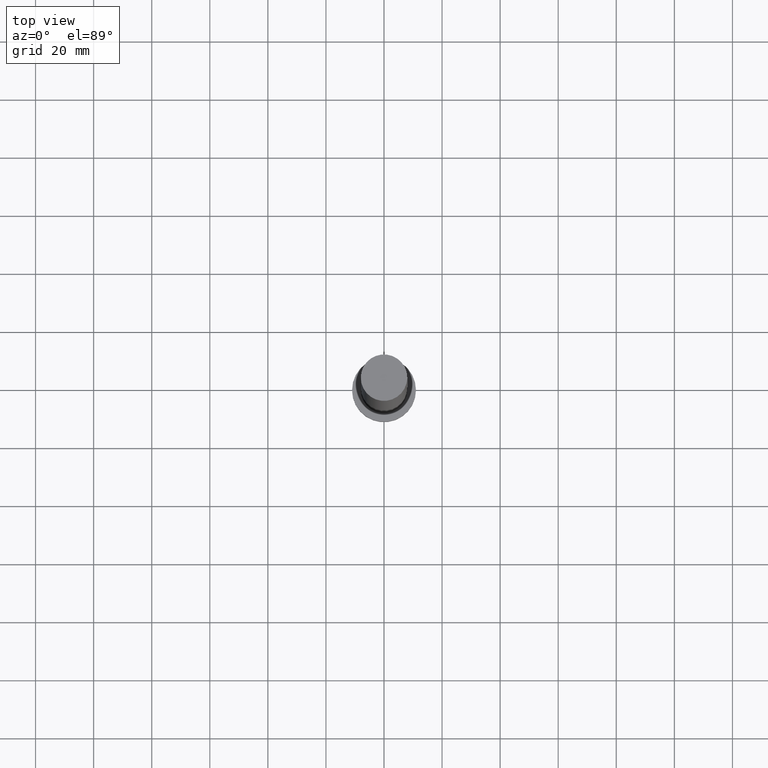
[diagram: clean part render]
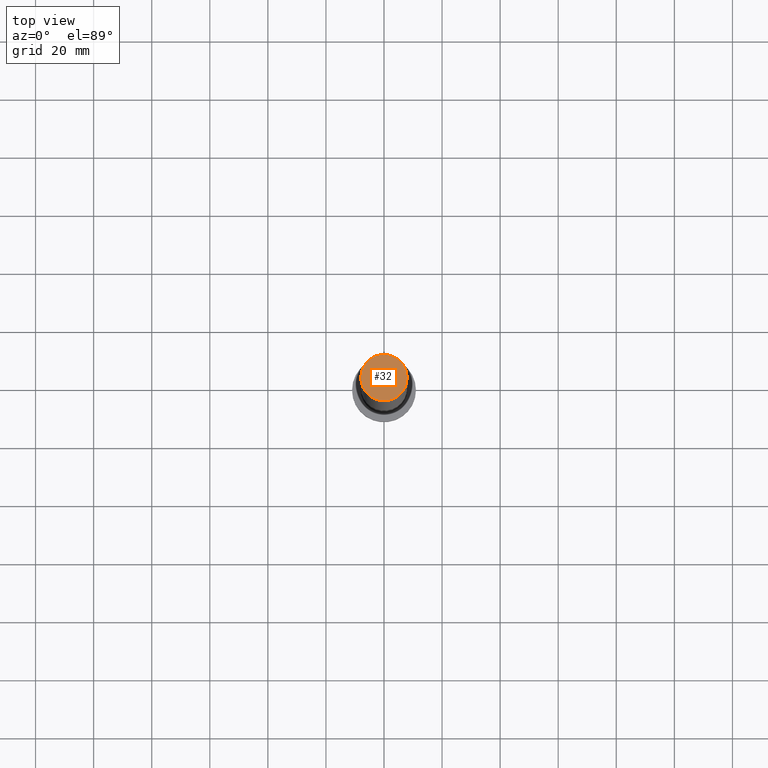
[diagram: same view with one face highlighted and labeled with its STEP entity id]
A machine part, top view. The second image highlights one B-rep face of the part: STEP entity #32.
In plain terms, the highlighted planar face has unit normal (0, 0, 1).
Its self-contained STEP definition (entity closure, byte-faithful):
#1 = DIRECTION ( 'NONE',  ( 1.000000000000000000, 0.000000000000000000, -0.000000000000000000 ) ) ;
#19 = ORIENTED_EDGE ( 'NONE', *, *, #66, .T. ) ;
#29 = CARTESIAN_POINT ( 'NONE',  ( 0.000000000000000000, 0.000000000000000000, 250.0000000000000000 ) ) ;
#32 = ADVANCED_FACE ( 'NONE', ( #107 ), #181, .T. ) ;
#33 = DIRECTION ( 'NONE',  ( 1.000000000000000000, 0.000000000000000000, 0.000000000000000000 ) ) ;
#40 = VERTEX_POINT ( 'NONE', #109 ) ;
#64 = DIRECTION ( 'NONE',  ( 1.000000000000000000, 0.000000000000000000, 0.000000000000000000 ) ) ;
#66 = EDGE_CURVE ( 'NONE', #236, #40, #133, .T. ) ;
#68 = CARTESIAN_POINT ( 'NONE',  ( -8.000000000000000000, 0.000000000000000000, 250.0000000000000000 ) ) ;
#83 = CARTESIAN_POINT ( 'NONE',  ( 0.000000000000000000, 0.000000000000000000, 250.0000000000000000 ) ) ;
#107 = FACE_OUTER_BOUND ( 'NONE', #223, .T. ) ;
#109 = CARTESIAN_POINT ( 'NONE',  ( 8.000000000000000000, 9.797174393178825657E-16, 250.0000000000000000 ) ) ;
#130 = DIRECTION ( 'NONE',  ( 0.000000000000000000, 0.000000000000000000, 1.000000000000000000 ) ) ;
#133 = CIRCLE ( 'NONE', #230, 8.000000000000000000 ) ;
#144 = CARTESIAN_POINT ( 'NONE',  ( 0.000000000000000000, 0.000000000000000000, 250.0000000000000000 ) ) ;
#147 = AXIS2_PLACEMENT_3D ( 'NONE', #29, #130, #33 ) ;
#175 = ORIENTED_EDGE ( 'NONE', *, *, #251, .T. ) ;
#181 = PLANE ( 'NONE',  #244 ) ;
#185 = CIRCLE ( 'NONE', #147, 8.000000000000000000 ) ;
#205 = DIRECTION ( 'NONE',  ( 0.000000000000000000, 0.000000000000000000, 1.000000000000000000 ) ) ;
#223 = EDGE_LOOP ( 'NONE', ( #19, #175 ) ) ;
#224 = DIRECTION ( 'NONE',  ( 0.000000000000000000, 0.000000000000000000, 1.000000000000000000 ) ) ;
#230 = AXIS2_PLACEMENT_3D ( 'NONE', #83, #224, #64 ) ;
#236 = VERTEX_POINT ( 'NONE', #68 ) ;
#244 = AXIS2_PLACEMENT_3D ( 'NONE', #144, #205, #1 ) ;
#251 = EDGE_CURVE ( 'NONE', #40, #236, #185, .T. ) ;